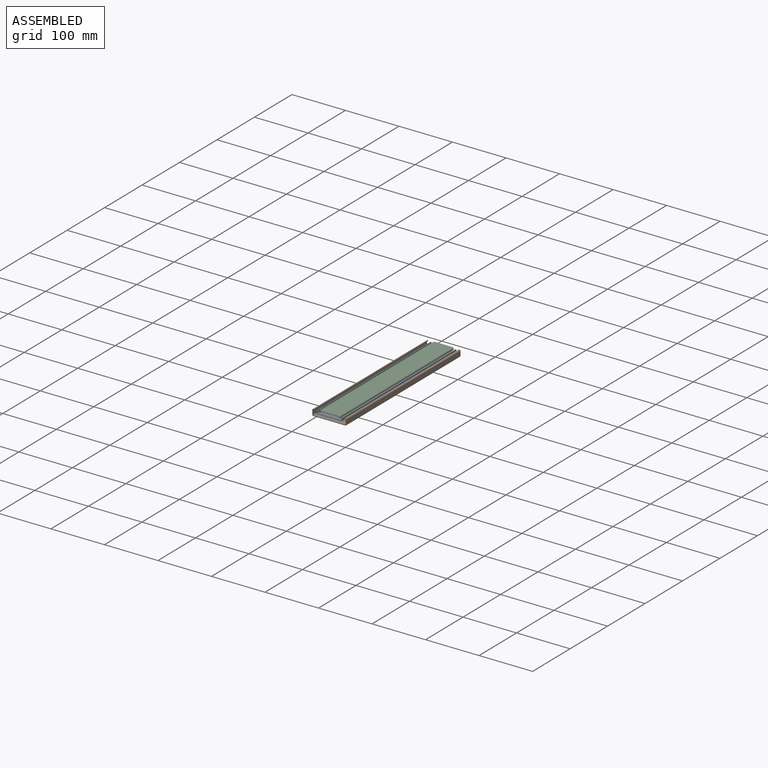
[diagram: assembled view]
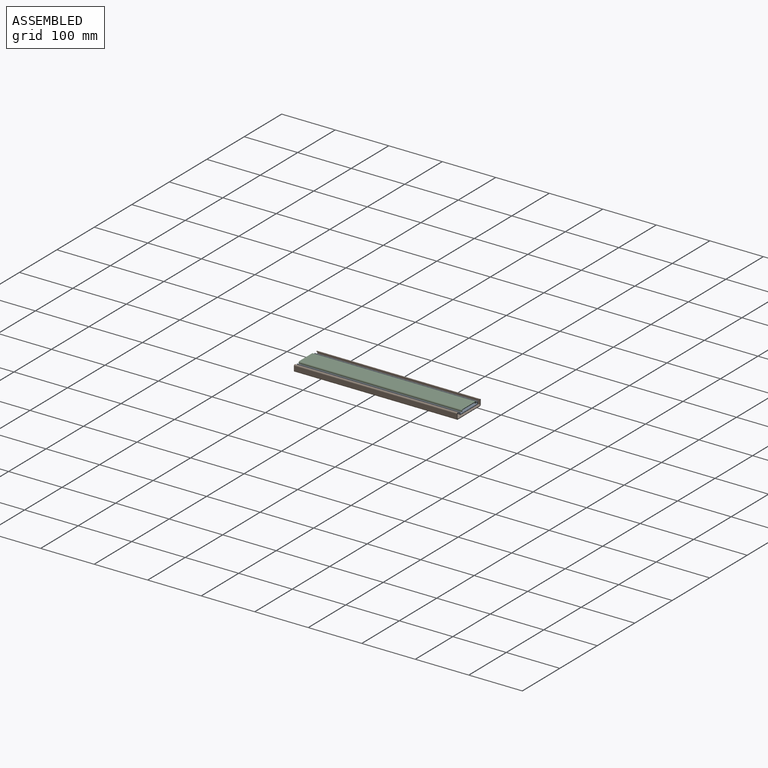
[diagram: assembled view, second angle]
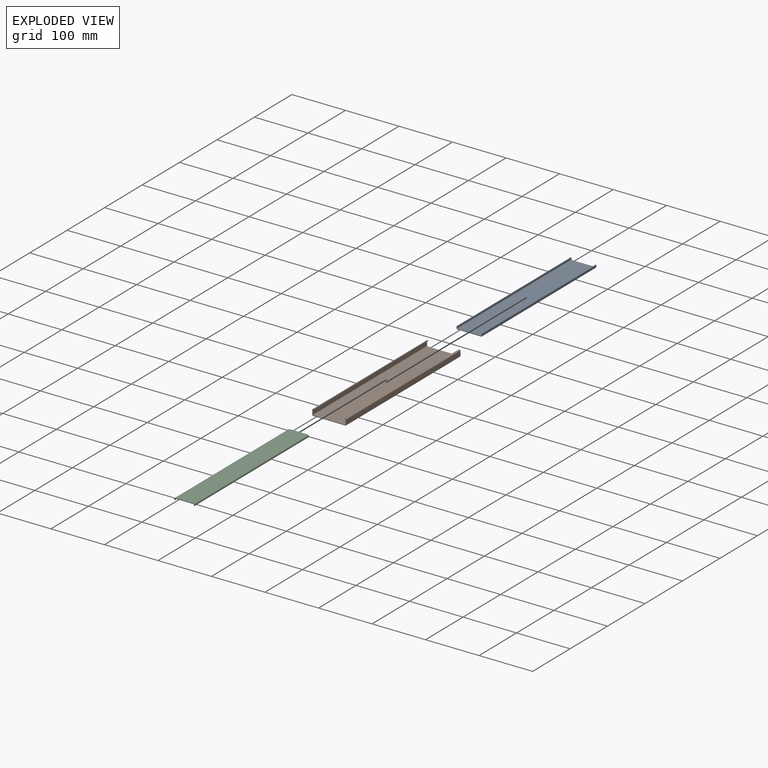
[diagram: exploded view]
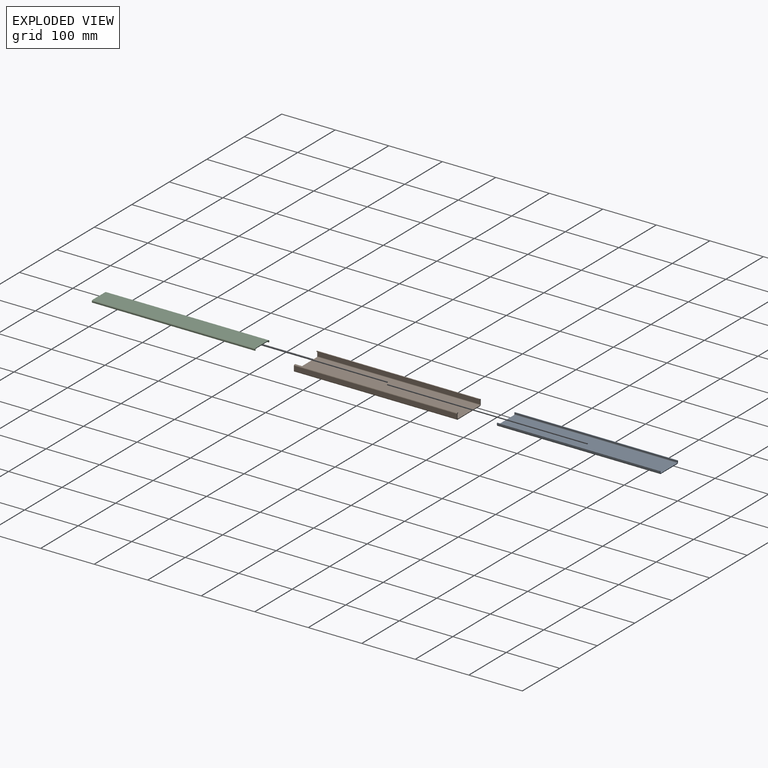
[diagram: exploded view, second angle]
ASSEMBLY  parts=3 mates=2
PART A: 14 faces, bbox 47.8x304.8x5.5 mm
  f0: cylinder r=1.27mm len=304.8mm, axis (0,-1,0), area 608mm2, adj f1,f11,f12,f13
  f1: plane 304.8x2.92mm, normal (1,0,0), area 891mm2, adj f0,f2,f12,f13
  f2: plane 304.8x1.27mm, normal (0,0,1), area 387.1mm2, adj f1,f3,f12,f13
  f3: plane 304.8x3.43mm, normal (-1,0,0), area 1045.9mm2, adj f2,f4,f12,f13
  f4: cylinder r=2.03mm len=304.8mm, axis (0,-1,0), area 972.9mm2, adj f3,f5,f12,f13
  f5: plane 304.8x43.74mm, normal (0,0,-1), area 13330.7mm2, adj f4,f6,f12,f13
  f6: cylinder r=2.03mm len=304.8mm, axis (0,-1,0), area 972.9mm2, adj f5,f7,f12,f13
  f7: plane 304.8x3.43mm, normal (1,0,0), area 1045.9mm2, adj f6,f8,f12,f13
  f8: plane 304.8x1.27mm, normal (0,0,1), area 387.1mm2, adj f7,f9,f12,f13
  f9: plane 304.8x2.92mm, normal (-1,0,0), area 891mm2, adj f8,f10,f12,f13
  f10: cylinder r=1.27mm len=304.8mm, axis (0,-1,0), area 608mm2, adj f9,f11,f12,f13
  f11: plane 304.8x42.72mm, normal (0,0,1), area 13021.1mm2, adj f0,f10,f12,f13
  f12: plane 47.8x5.46mm, normal (0,1,0), area 70.3mm2, adj f0,f1,f2,f3,f4,f5,f6,f7
  f13: plane 47.8x5.46mm, normal (0,-1,0), area 70.3mm2, adj f0,f1,f2,f3,f4,f5,f6,f7
PART B: 22 faces, bbox 63.5x304.8x12 mm
  f0: cylinder r=1.27mm len=304.8mm, axis (0,-1,0), area 608mm2, adj f1,f19,f20,f21
  f1: plane 304.8x6.91mm, normal (-1,0,0), area 2105.8mm2, adj f0,f2,f20,f21
  f2: cylinder r=1.27mm len=304.8mm, axis (0,-1,0), area 608mm2, adj f1,f3,f20,f21
  f3: plane 304.8x58.42mm, normal (0,0,1), area 17806.4mm2, adj f2,f4,f20,f21
  f4: cylinder r=1.27mm len=304.8mm, axis (0,-1,0), area 608mm2, adj f3,f5,f20,f21
  f5: plane 304.8x6.91mm, normal (1,0,0), area 2105.8mm2, adj f4,f6,f20,f21
  f6: cylinder r=1.27mm len=304.8mm, axis (0,-1,0), area 608mm2, adj f5,f7,f20,f21
  f7: plane 304.8x0.46mm, normal (0,0,-1), area 140.2mm2, adj f6,f8,f20,f21
  f8: plane 304.8x1.27mm, normal (1,0,0), area 387.1mm2, adj f7,f9,f20,f21
  f9: plane 304.8x0.97mm, normal (0,0,1), area 295mm2, adj f8,f10,f20,f21
  f10: cylinder r=2.03mm len=304.8mm, axis (0,-1,0), area 972.9mm2, adj f9,f11,f20,f21
  f11: plane 304.8x7.92mm, normal (-1,0,0), area 2415.5mm2, adj f10,f12,f20,f21
  f12: cylinder r=2.03mm len=304.8mm, axis (0,-1,0), area 972.9mm2, adj f11,f13,f20,f21
  f13: plane 304.8x59.69mm, normal (0,0,-1), area 18193.5mm2, adj f12,f14,f20,f21
  f14: cylinder r=1.78mm len=304.8mm, axis (0,-1,0), area 851.3mm2, adj f13,f15,f20,f21
  f15: plane 304.8x8.43mm, normal (1,0,0), area 2570.3mm2, adj f14,f16,f20,f21
  f16: cylinder r=1.78mm len=304.8mm, axis (0,-1,0), area 851.3mm2, adj f15,f17,f20,f21
  f17: plane 304.8x1.22mm, normal (0,0,1), area 372.5mm2, adj f16,f18,f20,f21
  f18: plane 304.8x1.27mm, normal (-1,0,0), area 387.1mm2, adj f17,f19,f20,f21
  f19: plane 304.8x0.46mm, normal (0,0,-1), area 140.2mm2, adj f0,f18,f20,f21
  f20: plane 63.5x11.99mm, normal (0,1,0), area 110.5mm2, adj f0,f1,f2,f3,f4,f5,f6,f7
  f21: plane 63.5x11.99mm, normal (0,-1,0), area 110.5mm2, adj f0,f1,f2,f3,f4,f5,f6,f7
PART C: 14 faces, bbox 38.1x304.8x3.9 mm
  f0: plane 304.8x1.85mm, normal (1,0,0), area 563.6mm2, adj f1,f11,f12,f13
  f1: cylinder r=2.03mm len=304.8mm, axis (0,-1,0), area 972.9mm2, adj f0,f2,f12,f13
  f2: plane 304.8x34.04mm, normal (0,0,1), area 10374.2mm2, adj f1,f3,f12,f13
  f3: cylinder r=2.03mm len=304.8mm, axis (0,-1,0), area 972.9mm2, adj f2,f4,f12,f13
  f4: plane 304.8x1.85mm, normal (-1,0,0), area 563.6mm2, adj f3,f5,f12,f13
  f5: plane 304.8x1.27mm, normal (0,0,-1), area 387.1mm2, adj f4,f6,f12,f13
  f6: plane 304.8x1.34mm, normal (1,0,0), area 408.7mm2, adj f5,f7,f12,f13
  f7: cylinder r=1.27mm len=304.8mm, axis (0,-1,0), area 608mm2, adj f6,f8,f12,f13
  f8: plane 304.8x33.02mm, normal (0,0,-1), area 10064.5mm2, adj f7,f9,f12,f13
  f9: cylinder r=1.27mm len=304.8mm, axis (0,-1,0), area 608mm2, adj f8,f10,f12,f13
  f10: plane 304.8x1.34mm, normal (-1,0,0), area 408.7mm2, adj f9,f11,f12,f13
  f11: plane 304.8x1.27mm, normal (0,0,-1), area 387.1mm2, adj f0,f10,f12,f13
  f12: plane 38.1x3.88mm, normal (0,1,0), area 53.9mm2, adj f0,f1,f2,f3,f4,f5,f6,f7
  f13: plane 38.1x3.88mm, normal (0,-1,0), area 53.9mm2, adj f0,f1,f2,f3,f4,f5,f6,f7
PLACE A t=(99.59,-243.47,125.08)mm
PLACE B t=(99.59,-243.47,125.08)mm fixed
PLACE C t=(99.59,-243.47,125.08)mm
MATE slider A.f13 <-> B.f16  axis (0,-1,0) through (160.34,-243.47,130.02)mm
MATE slider A.f13 <-> C.f13  axis (0,-1,0) through (160.34,-243.47,130.02)mm
